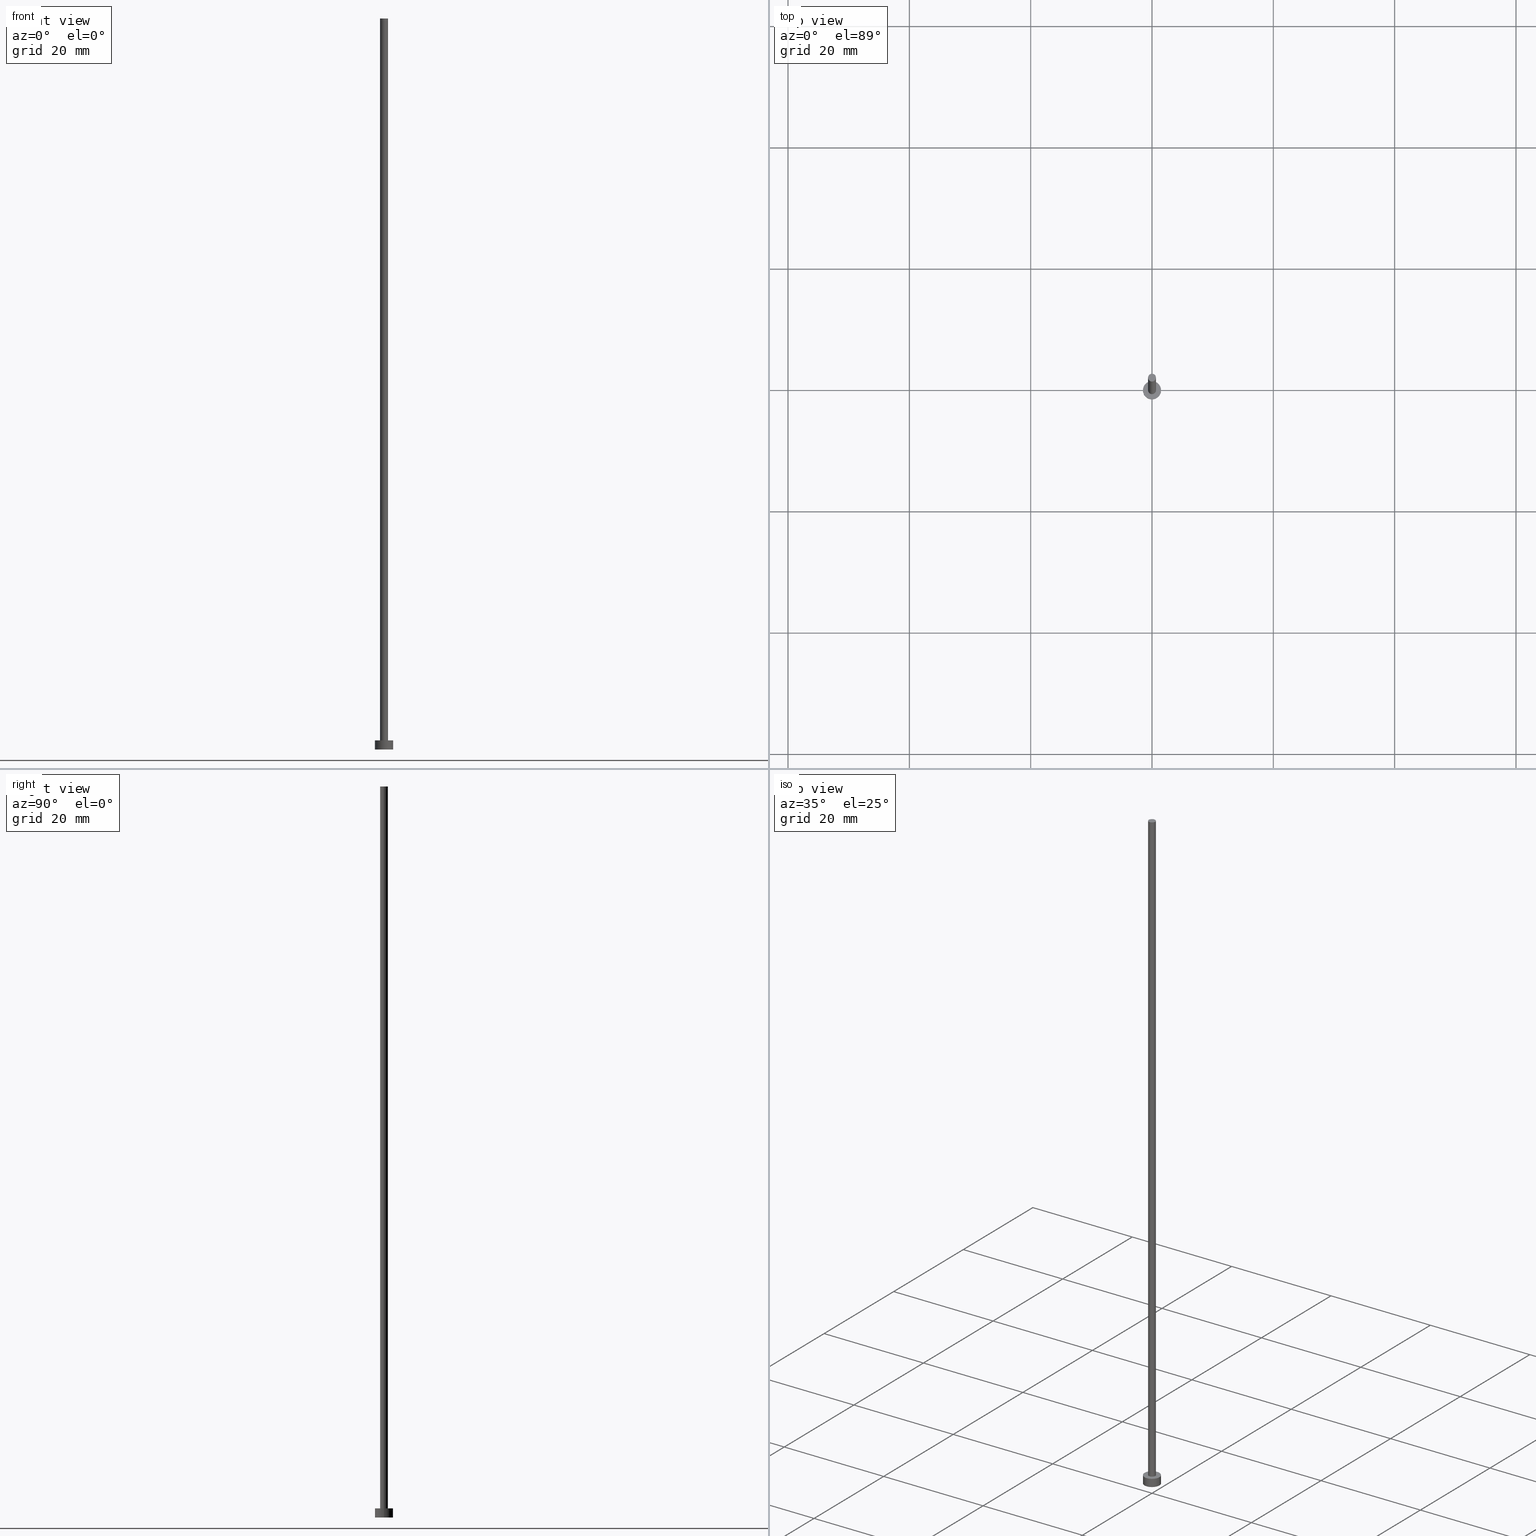
[diagram: canonical four-view strip — front | top / right | iso, engineering-drawing reading convention]
A machine part, canonical four-view strip (front | top / right | iso — engineering-drawing reading convention). The complete STEP part file that produces these views, byte-faithful:
ISO-10303-21;
HEADER;
FILE_DESCRIPTION (( 'STEP AP203' ),
    '1' );
FILE_NAME ('c64f.STEP',
    '2023-03-07T09:47:35',
    ( '' ),
    ( '' ),
    'SwSTEP 2.0',
    'SolidWorks 2019',
    '' );
FILE_SCHEMA (( 'CONFIG_CONTROL_DESIGN' ));
ENDSEC;

DATA;
#1 = DIRECTION ( 'NONE',  ( -1.000000000000000000, 0.000000000000000000, 0.000000000000000000 ) ) ;
#2 = AXIS2_PLACEMENT_3D ( 'NONE', #24, #95, #109 ) ;
#3 = PLANE ( 'NONE',  #79 ) ;
#4 = FACE_OUTER_BOUND ( 'NONE', #85, .T. ) ;
#5 = CC_DESIGN_DATE_AND_TIME_ASSIGNMENT ( #96, #211, ( #132 ) ) ;
#6 = CARTESIAN_POINT ( 'NONE',  ( 1.500000000000000222, 1.836970198721030181E-16, 1.500000000000000000 ) ) ;
#7 = DIRECTION ( 'NONE',  ( 0.000000000000000000, 0.000000000000000000, 1.000000000000000000 ) ) ;
#8 = EDGE_CURVE ( 'NONE', #146, #203, #30, .T. ) ;
#9 = CALENDAR_DATE ( 2023, 7, 3 ) ;
#10 = DIRECTION ( 'NONE',  ( 0.000000000000000000, 0.000000000000000000, 1.000000000000000000 ) ) ;
#11 = CC_DESIGN_PERSON_AND_ORGANIZATION_ASSIGNMENT ( #157, #86, ( #169 ) ) ;
#12 =( NAMED_UNIT ( * ) PLANE_ANGLE_UNIT ( ) SI_UNIT ( $, .RADIAN. ) );
#13 = CIRCLE ( 'NONE', #185, 1.500000000000000222 ) ;
#14 = CC_DESIGN_PERSON_AND_ORGANIZATION_ASSIGNMENT ( #135, #134, ( #132 ) ) ;
#15 = DATE_AND_TIME ( #138, #140 ) ;
#16 = DIRECTION ( 'NONE',  ( 0.000000000000000000, 0.000000000000000000, 1.000000000000000000 ) ) ;
#17 = ORIENTED_EDGE ( 'NONE', *, *, #75, .T. ) ;
#18 = DIRECTION ( 'NONE',  ( -0.000000000000000000, -0.000000000000000000, -1.000000000000000000 ) ) ;
#19 = CARTESIAN_POINT ( 'NONE',  ( 0.000000000000000000, 0.000000000000000000, 120.5000000000000000 ) ) ;
#20 = DIRECTION ( 'NONE',  ( -1.000000000000000000, 0.000000000000000000, 0.000000000000000000 ) ) ;
#21 = DIRECTION ( 'NONE',  ( 1.000000000000000000, 0.000000000000000000, 0.000000000000000000 ) ) ;
#22 = AXIS2_PLACEMENT_3D ( 'NONE', #40, #16, #64 ) ;
#23 = APPROVAL ( #160, 'NEUR�EN�' ) ;
#24 = CARTESIAN_POINT ( 'NONE',  ( 0.000000000000000000, 0.000000000000000000, 120.5000000000000000 ) ) ;
#25 = CC_DESIGN_PERSON_AND_ORGANIZATION_ASSIGNMENT ( #251, #62, ( #248 ) ) ;
#26 = APPLICATION_CONTEXT ( 'configuration controlled 3d designs of mechanical parts and assemblies' ) ;
#27 = DIRECTION ( 'NONE',  ( 1.000000000000000000, 0.000000000000000000, -0.000000000000000000 ) ) ;
#28 = CARTESIAN_POINT ( 'NONE',  ( 0.000000000000000000, 0.000000000000000000, 1.500000000000000000 ) ) ;
#29 = EDGE_CURVE ( 'NONE', #161, #163, #158, .T. ) ;
#30 = CIRCLE ( 'NONE', #22, 1.500000000000000222 ) ;
#31 = COORDINATED_UNIVERSAL_TIME_OFFSET ( 1, 0, .AHEAD. ) ;
#32 = CARTESIAN_POINT ( 'NONE',  ( 0.000000000000000000, 0.000000000000000000, 0.000000000000000000 ) ) ;
#33 = PRODUCT_RELATED_PRODUCT_CATEGORY ( 'detail', '', ( #70 ) ) ;
#34 = AXIS2_PLACEMENT_3D ( 'NONE', #149, #126, #191 ) ;
#35 = APPROVAL_ROLE ( '' ) ;
#36 = DIRECTION ( 'NONE',  ( 0.000000000000000000, 0.000000000000000000, 1.000000000000000000 ) ) ;
#37 = AXIS2_PLACEMENT_3D ( 'NONE', #225, #242, #49 ) ;
#38 = VERTEX_POINT ( 'NONE', #197 ) ;
#39 = CALENDAR_DATE ( 2023, 7, 3 ) ;
#40 = CARTESIAN_POINT ( 'NONE',  ( 0.000000000000000000, 0.000000000000000000, 0.000000000000000000 ) ) ;
#41 = EDGE_CURVE ( 'NONE', #141, #146, #199, .T. ) ;
#42 = ORIENTED_EDGE ( 'NONE', *, *, #181, .F. ) ;
#43 = CLOSED_SHELL ( 'NONE', ( #67, #173, #102, #128, #150, #53, #188 ) ) ;
#44 = ORIENTED_EDGE ( 'NONE', *, *, #195, .F. ) ;
#45 = CARTESIAN_POINT ( 'NONE',  ( 0.000000000000000000, 0.000000000000000000, 120.5000000000000000 ) ) ;
#46 = EDGE_CURVE ( 'NONE', #182, #203, #87, .T. ) ;
#47 = FACE_OUTER_BOUND ( 'NONE', #103, .T. ) ;
#48 = CC_DESIGN_APPROVAL ( #23, ( #248 ) ) ;
#49 = DIRECTION ( 'NONE',  ( 1.000000000000000000, 0.000000000000000000, 0.000000000000000000 ) ) ;
#50 = CARTESIAN_POINT ( 'NONE',  ( 0.000000000000000000, 0.000000000000000000, 0.000000000000000000 ) ) ;
#51 = DIRECTION ( 'NONE',  ( -0.000000000000000000, -0.000000000000000000, -1.000000000000000000 ) ) ;
#52 = APPROVAL_PERSON_ORGANIZATION ( #55, #76, #78 ) ;
#53 = ADVANCED_FACE ( 'NONE', ( #219 ), #202, .T. ) ;
#54 = EDGE_CURVE ( 'NONE', #118, #161, #72, .T. ) ;
#55 = PERSON_AND_ORGANIZATION ( #230, #61 ) ;
#56 = PERSON_AND_ORGANIZATION ( #230, #61 ) ;
#57 = VECTOR ( 'NONE', #144, 1000.000000000000000 ) ;
#58 = COORDINATED_UNIVERSAL_TIME_OFFSET ( 1, 0, .AHEAD. ) ;
#59 = CARTESIAN_POINT ( 'NONE',  ( 0.000000000000000000, 0.000000000000000000, 1.500000000000000000 ) ) ;
#60 = ORIENTED_EDGE ( 'NONE', *, *, #217, .T. ) ;
#61 = ORGANIZATION ( 'NEUR�EN�', 'NEUR�EN�', '' ) ;
#62 = PERSON_AND_ORGANIZATION_ROLE ( 'classification_officer' ) ;
#63 = ORIENTED_EDGE ( 'NONE', *, *, #29, .F. ) ;
#64 = DIRECTION ( 'NONE',  ( 1.000000000000000000, 0.000000000000000000, 0.000000000000000000 ) ) ;
#65 = ORIENTED_EDGE ( 'NONE', *, *, #54, .F. ) ;
#66 = DIRECTION ( 'NONE',  ( 1.000000000000000000, 0.000000000000000000, 0.000000000000000000 ) ) ;
#67 = ADVANCED_FACE ( 'NONE', ( #4 ), #204, .T. ) ;
#68 = DIRECTION ( 'NONE',  ( 0.000000000000000000, 0.000000000000000000, 1.000000000000000000 ) ) ;
#69 = CYLINDRICAL_SURFACE ( 'NONE', #220, 1.500000000000000222 ) ;
#70 = PRODUCT ( 'c64f', 'c64f', '', ( #155 ) ) ;
#71 = AXIS2_PLACEMENT_3D ( 'NONE', #241, #68, #21 ) ;
#72 = LINE ( 'NONE', #190, #99 ) ;
#73 = CARTESIAN_POINT ( 'NONE',  ( 0.000000000000000000, 0.000000000000000000, 1.500000000000000000 ) ) ;
#74 = APPROVAL_PERSON_ORGANIZATION ( #212, #77, #35 ) ;
#75 = EDGE_CURVE ( 'NONE', #203, #146, #94, .T. ) ;
#76 = APPROVAL ( #210, 'NEUR�EN�' ) ;
#77 = APPROVAL ( #247, 'NEUR�EN�' ) ;
#78 = APPROVAL_ROLE ( '' ) ;
#79 = AXIS2_PLACEMENT_3D ( 'NONE', #50, #91, #131 ) ;
#80 = DATE_TIME_ROLE ( 'classification_date' ) ;
#81 = EDGE_LOOP ( 'NONE', ( #63, #44 ) ) ;
#82 = APPROVAL_DATE_TIME ( #15, #23 ) ;
#83 = ADVANCED_BREP_SHAPE_REPRESENTATION ( 'c64f', ( #171, #127 ), #250 ) ;
#84 = CARTESIAN_POINT ( 'NONE',  ( 1.500000000000000222, 1.836970198721030181E-16, 1.500000000000000000 ) ) ;
#85 = EDGE_LOOP ( 'NONE', ( #42, #139, #221, #65 ) ) ;
#86 = PERSON_AND_ORGANIZATION_ROLE ( 'creator' ) ;
#87 = LINE ( 'NONE', #236, #57 ) ;
#88 = EDGE_LOOP ( 'NONE', ( #168, #252, #214, #234 ) ) ;
#89 = CARTESIAN_POINT ( 'NONE',  ( 0.000000000000000000, 0.000000000000000000, 1.500000000000000000 ) ) ;
#90 = CC_DESIGN_APPROVAL ( #76, ( #169 ) ) ;
#91 = DIRECTION ( 'NONE',  ( 0.000000000000000000, 0.000000000000000000, 1.000000000000000000 ) ) ;
#92 = CYLINDRICAL_SURFACE ( 'NONE', #34, 1.500000000000000222 ) ;
#93 = LINE ( 'NONE', #226, #232 ) ;
#94 = CIRCLE ( 'NONE', #200, 1.500000000000000222 ) ;
#95 = DIRECTION ( 'NONE',  ( 0.000000000000000000, 0.000000000000000000, 1.000000000000000000 ) ) ;
#96 = DATE_AND_TIME ( #9, #123 ) ;
#97 = CIRCLE ( 'NONE', #152, 1.500000000000000222 ) ;
#98 =( NAMED_UNIT ( * ) SI_UNIT ( $, .STERADIAN. ) SOLID_ANGLE_UNIT ( ) );
#99 = VECTOR ( 'NONE', #245, 1000.000000000000000 ) ;
#100 = EDGE_LOOP ( 'NONE', ( #101, #253, #235, #17 ) ) ;
#101 = ORIENTED_EDGE ( 'NONE', *, *, #41, .F. ) ;
#102 = ADVANCED_FACE ( 'NONE', ( #170 ), #92, .T. ) ;
#103 = EDGE_LOOP ( 'NONE', ( #183, #216 ) ) ;
#104 = PERSON_AND_ORGANIZATION ( #230, #61 ) ;
#105 = ORIENTED_EDGE ( 'NONE', *, *, #54, .T. ) ;
#106 = DIRECTION ( 'NONE',  ( 1.000000000000000000, 0.000000000000000000, 0.000000000000000000 ) ) ;
#107 = DIRECTION ( 'NONE',  ( -0.000000000000000000, -0.000000000000000000, -1.000000000000000000 ) ) ;
#108 = AXIS2_PLACEMENT_3D ( 'NONE', #73, #7, #27 ) ;
#109 = DIRECTION ( 'NONE',  ( 1.000000000000000000, 0.000000000000000000, -0.000000000000000000 ) ) ;
#110 = CARTESIAN_POINT ( 'NONE',  ( 0.000000000000000000, 0.000000000000000000, 0.000000000000000000 ) ) ;
#111 = DIRECTION ( 'NONE',  ( 0.000000000000000000, 0.000000000000000000, 1.000000000000000000 ) ) ;
#112 = EDGE_CURVE ( 'NONE', #118, #38, #114, .T. ) ;
#113 = CALENDAR_DATE ( 2023, 7, 3 ) ;
#114 = CIRCLE ( 'NONE', #147, 0.6500000000000000222 ) ;
#115 = PERSON_AND_ORGANIZATION_ROLE ( 'design_owner' ) ;
#116 = COORDINATED_UNIVERSAL_TIME_OFFSET ( 1, 0, .AHEAD. ) ;
#117 = AXIS2_PLACEMENT_3D ( 'NONE', #19, #51, #1 ) ;
#118 = VERTEX_POINT ( 'NONE', #187 ) ;
#119 = CC_DESIGN_PERSON_AND_ORGANIZATION_ASSIGNMENT ( #56, #115, ( #70 ) ) ;
#120 = PERSON_AND_ORGANIZATION ( #230, #61 ) ;
#121 = DIRECTION ( 'NONE',  ( 1.000000000000000000, 0.000000000000000000, 0.000000000000000000 ) ) ;
#122 = ORIENTED_EDGE ( 'NONE', *, *, #112, .F. ) ;
#123 = LOCAL_TIME ( 10, 47, 35.00000000000000000, #249 ) ;
#124 = ORIENTED_EDGE ( 'NONE', *, *, #75, .F. ) ;
#125 = CARTESIAN_POINT ( 'NONE',  ( 0.6500000000000000222, 7.960204194457795477E-17, 1.500000000000000000 ) ) ;
#126 = DIRECTION ( 'NONE',  ( -0.000000000000000000, -0.000000000000000000, -1.000000000000000000 ) ) ;
#127 = AXIS2_PLACEMENT_3D ( 'NONE', #32, #10, #246 ) ;
#128 = ADVANCED_FACE ( 'NONE', ( #148, #227 ), #189, .T. ) ;
#129 = CARTESIAN_POINT ( 'NONE',  ( 0.000000000000000000, 0.000000000000000000, 1.500000000000000000 ) ) ;
#130 = CARTESIAN_POINT ( 'NONE',  ( 0.000000000000000000, 0.000000000000000000, 120.5000000000000000 ) ) ;
#131 = DIRECTION ( 'NONE',  ( 1.000000000000000000, 0.000000000000000000, -0.000000000000000000 ) ) ;
#132 = PRODUCT_DEFINITION ( 'NEZN�M�', '', #169, #156 ) ;
#133 = DATE_AND_TIME ( #179, #215 ) ;
#134 = PERSON_AND_ORGANIZATION_ROLE ( 'creator' ) ;
#135 = PERSON_AND_ORGANIZATION ( #230, #61 ) ;
#136 = UNCERTAINTY_MEASURE_WITH_UNIT (LENGTH_MEASURE( 1.000000000000000082E-05 ), #193, 'distance_accuracy_value', 'NONE');
#137 = APPROVAL_PERSON_ORGANIZATION ( #120, #23, #233 ) ;
#138 = CALENDAR_DATE ( 2023, 7, 3 ) ;
#139 = ORIENTED_EDGE ( 'NONE', *, *, #196, .T. ) ;
#140 = LOCAL_TIME ( 10, 47, 35.00000000000000000, #58 ) ;
#141 = VERTEX_POINT ( 'NONE', #6 ) ;
#142 = ORIENTED_EDGE ( 'NONE', *, *, #29, .T. ) ;
#143 = PRODUCT_DEFINITION_SHAPE ( 'NONE', 'NONE',  #132 ) ;
#144 = DIRECTION ( 'NONE',  ( -0.000000000000000000, -0.000000000000000000, -1.000000000000000000 ) ) ;
#145 = VECTOR ( 'NONE', #18, 1000.000000000000000 ) ;
#146 = VERTEX_POINT ( 'NONE', #176 ) ;
#147 = AXIS2_PLACEMENT_3D ( 'NONE', #130, #240, #66 ) ;
#148 = FACE_BOUND ( 'NONE', #81, .T. ) ;
#149 = CARTESIAN_POINT ( 'NONE',  ( 0.000000000000000000, 0.000000000000000000, 1.500000000000000000 ) ) ;
#150 = ADVANCED_FACE ( 'NONE', ( #175 ), #3, .F. ) ;
#151 = DIRECTION ( 'NONE',  ( -1.000000000000000000, 0.000000000000000000, 0.000000000000000000 ) ) ;
#152 = AXIS2_PLACEMENT_3D ( 'NONE', #28, #111, #192 ) ;
#153 = DIRECTION ( 'NONE',  ( 1.000000000000000000, 0.000000000000000000, 0.000000000000000000 ) ) ;
#154 = CARTESIAN_POINT ( 'NONE',  ( -1.500000000000000222, 0.000000000000000000, 1.500000000000000000 ) ) ;
#155 = MECHANICAL_CONTEXT ( 'NONE', #213, 'mechanical' ) ;
#156 = DESIGN_CONTEXT ( 'detailed design', #26, 'design' ) ;
#157 = PERSON_AND_ORGANIZATION ( #230, #61 ) ;
#158 = CIRCLE ( 'NONE', #164, 0.6500000000000000222 ) ;
#159 = APPROVAL_DATE_TIME ( #133, #77 ) ;
#160 = APPROVAL_STATUS ( 'not_yet_approved' ) ;
#161 = VERTEX_POINT ( 'NONE', #224 ) ;
#162 = SHAPE_DEFINITION_REPRESENTATION ( #143, #83 ) ;
#163 = VERTEX_POINT ( 'NONE', #125 ) ;
#164 = AXIS2_PLACEMENT_3D ( 'NONE', #59, #36, #121 ) ;
#165 = PERSON_AND_ORGANIZATION_ROLE ( 'design_supplier' ) ;
#166 = ORIENTED_EDGE ( 'NONE', *, *, #196, .F. ) ;
#167 = EDGE_LOOP ( 'NONE', ( #238, #60 ) ) ;
#168 = ORIENTED_EDGE ( 'NONE', *, *, #217, .F. ) ;
#169 = PRODUCT_DEFINITION_FORMATION_WITH_SPECIFIED_SOURCE ( 'LIBOVOLN�', '', #70, .NOT_KNOWN. ) ;
#170 = FACE_OUTER_BOUND ( 'NONE', #100, .T. ) ;
#171 = MANIFOLD_SOLID_BREP ( 'P�idat vysunut�m3', #43 ) ;
#172 = DIRECTION ( 'NONE',  ( 0.000000000000000000, 0.000000000000000000, 1.000000000000000000 ) ) ;
#173 = ADVANCED_FACE ( 'NONE', ( #174 ), #69, .T. ) ;
#174 = FACE_OUTER_BOUND ( 'NONE', #88, .T. ) ;
#175 = FACE_OUTER_BOUND ( 'NONE', #255, .T. ) ;
#176 = CARTESIAN_POINT ( 'NONE',  ( 1.500000000000000222, 1.836970198721030181E-16, 0.000000000000000000 ) ) ;
#177 = DATE_AND_TIME ( #113, #243 ) ;
#178 = AXIS2_PLACEMENT_3D ( 'NONE', #45, #107, #20 ) ;
#179 = CALENDAR_DATE ( 2023, 7, 3 ) ;
#180 = CIRCLE ( 'NONE', #71, 0.6500000000000000222 ) ;
#181 = EDGE_CURVE ( 'NONE', #38, #118, #180, .T. ) ;
#182 = VERTEX_POINT ( 'NONE', #154 ) ;
#183 = ORIENTED_EDGE ( 'NONE', *, *, #112, .T. ) ;
#184 = ORIENTED_EDGE ( 'NONE', *, *, #8, .F. ) ;
#185 = AXIS2_PLACEMENT_3D ( 'NONE', #129, #207, #153 ) ;
#186 = SECURITY_CLASSIFICATION_LEVEL ( 'unclassified' ) ;
#187 = CARTESIAN_POINT ( 'NONE',  ( -0.6500000000000000222, 0.000000000000000000, 120.5000000000000000 ) ) ;
#188 = ADVANCED_FACE ( 'NONE', ( #47 ), #206, .T. ) ;
#189 = PLANE ( 'NONE',  #108 ) ;
#190 = CARTESIAN_POINT ( 'NONE',  ( -0.6500000000000000222, 0.000000000000000000, 120.5000000000000000 ) ) ;
#191 = DIRECTION ( 'NONE',  ( -1.000000000000000000, 0.000000000000000000, 0.000000000000000000 ) ) ;
#192 = DIRECTION ( 'NONE',  ( 1.000000000000000000, 0.000000000000000000, 0.000000000000000000 ) ) ;
#193 =( LENGTH_UNIT ( ) NAMED_UNIT ( * ) SI_UNIT ( .MILLI., .METRE. ) );
#194 = APPROVAL_DATE_TIME ( #177, #76 ) ;
#195 = EDGE_CURVE ( 'NONE', #163, #161, #239, .T. ) ;
#196 = EDGE_CURVE ( 'NONE', #38, #163, #93, .T. ) ;
#197 = CARTESIAN_POINT ( 'NONE',  ( 0.6500000000000000222, 7.960204194457795477E-17, 120.5000000000000000 ) ) ;
#198 = COORDINATED_UNIVERSAL_TIME_OFFSET ( 1, 0, .AHEAD. ) ;
#199 = LINE ( 'NONE', #84, #145 ) ;
#200 = AXIS2_PLACEMENT_3D ( 'NONE', #110, #172, #106 ) ;
#201 = DATE_AND_TIME ( #39, #229 ) ;
#202 = CYLINDRICAL_SURFACE ( 'NONE', #117, 0.6500000000000000222 ) ;
#203 = VERTEX_POINT ( 'NONE', #208 ) ;
#204 = CYLINDRICAL_SURFACE ( 'NONE', #178, 0.6500000000000000222 ) ;
#205 = CC_DESIGN_SECURITY_CLASSIFICATION ( #248, ( #169 ) ) ;
#206 = PLANE ( 'NONE',  #2 ) ;
#207 = DIRECTION ( 'NONE',  ( 0.000000000000000000, 0.000000000000000000, 1.000000000000000000 ) ) ;
#208 = CARTESIAN_POINT ( 'NONE',  ( -1.500000000000000222, 0.000000000000000000, 0.000000000000000000 ) ) ;
#209 = CC_DESIGN_APPROVAL ( #77, ( #132 ) ) ;
#210 = APPROVAL_STATUS ( 'not_yet_approved' ) ;
#211 = DATE_TIME_ROLE ( 'creation_date' ) ;
#212 = PERSON_AND_ORGANIZATION ( #230, #61 ) ;
#213 = APPLICATION_CONTEXT ( 'configuration controlled 3d designs of mechanical parts and assemblies' ) ;
#214 = ORIENTED_EDGE ( 'NONE', *, *, #8, .T. ) ;
#215 = LOCAL_TIME ( 10, 47, 35.00000000000000000, #116 ) ;
#216 = ORIENTED_EDGE ( 'NONE', *, *, #181, .T. ) ;
#217 = EDGE_CURVE ( 'NONE', #141, #182, #13, .T. ) ;
#218 = EDGE_LOOP ( 'NONE', ( #166, #122, #105, #142 ) ) ;
#219 = FACE_OUTER_BOUND ( 'NONE', #218, .T. ) ;
#220 = AXIS2_PLACEMENT_3D ( 'NONE', #89, #223, #151 ) ;
#221 = ORIENTED_EDGE ( 'NONE', *, *, #195, .T. ) ;
#222 = CC_DESIGN_DATE_AND_TIME_ASSIGNMENT ( #201, #80, ( #248 ) ) ;
#223 = DIRECTION ( 'NONE',  ( -0.000000000000000000, -0.000000000000000000, -1.000000000000000000 ) ) ;
#224 = CARTESIAN_POINT ( 'NONE',  ( -0.6500000000000000222, 0.000000000000000000, 1.500000000000000000 ) ) ;
#225 = CARTESIAN_POINT ( 'NONE',  ( 0.000000000000000000, 0.000000000000000000, 1.500000000000000000 ) ) ;
#226 = CARTESIAN_POINT ( 'NONE',  ( 0.6500000000000000222, 7.960204194457795477E-17, 120.5000000000000000 ) ) ;
#227 = FACE_OUTER_BOUND ( 'NONE', #167, .T. ) ;
#228 = APPLICATION_PROTOCOL_DEFINITION ( 'international standard', 'config_control_design', 1994, #213 ) ;
#229 = LOCAL_TIME ( 10, 47, 35.00000000000000000, #198 ) ;
#230 = PERSON ( 'NEUR�EN�', 'NEUR�EN�', 'NEUR�EN�', ('NEUR�EN�'), ('NEUR�EN�'), ('NEUR�EN�') ) ;
#231 = APPLICATION_PROTOCOL_DEFINITION ( 'international standard', 'config_control_design', 1994, #26 ) ;
#232 = VECTOR ( 'NONE', #244, 1000.000000000000000 ) ;
#233 = APPROVAL_ROLE ( '' ) ;
#234 = ORIENTED_EDGE ( 'NONE', *, *, #46, .F. ) ;
#235 = ORIENTED_EDGE ( 'NONE', *, *, #46, .T. ) ;
#236 = CARTESIAN_POINT ( 'NONE',  ( -1.500000000000000222, 0.000000000000000000, 1.500000000000000000 ) ) ;
#237 = EDGE_CURVE ( 'NONE', #182, #141, #97, .T. ) ;
#238 = ORIENTED_EDGE ( 'NONE', *, *, #237, .T. ) ;
#239 = CIRCLE ( 'NONE', #37, 0.6500000000000000222 ) ;
#240 = DIRECTION ( 'NONE',  ( 0.000000000000000000, 0.000000000000000000, 1.000000000000000000 ) ) ;
#241 = CARTESIAN_POINT ( 'NONE',  ( 0.000000000000000000, 0.000000000000000000, 120.5000000000000000 ) ) ;
#242 = DIRECTION ( 'NONE',  ( 0.000000000000000000, 0.000000000000000000, 1.000000000000000000 ) ) ;
#243 = LOCAL_TIME ( 10, 47, 35.00000000000000000, #31 ) ;
#244 = DIRECTION ( 'NONE',  ( -0.000000000000000000, -0.000000000000000000, -1.000000000000000000 ) ) ;
#245 = DIRECTION ( 'NONE',  ( -0.000000000000000000, -0.000000000000000000, -1.000000000000000000 ) ) ;
#246 = DIRECTION ( 'NONE',  ( 1.000000000000000000, 0.000000000000000000, 0.000000000000000000 ) ) ;
#247 = APPROVAL_STATUS ( 'not_yet_approved' ) ;
#248 = SECURITY_CLASSIFICATION ( '', '', #186 ) ;
#249 = COORDINATED_UNIVERSAL_TIME_OFFSET ( 1, 0, .AHEAD. ) ;
#250 =( GEOMETRIC_REPRESENTATION_CONTEXT ( 3 ) GLOBAL_UNCERTAINTY_ASSIGNED_CONTEXT ( ( #136 ) ) GLOBAL_UNIT_ASSIGNED_CONTEXT ( ( #193, #12, #98 ) ) REPRESENTATION_CONTEXT ( 'NONE', 'WORKASPACE' ) );
#251 = PERSON_AND_ORGANIZATION ( #230, #61 ) ;
#252 = ORIENTED_EDGE ( 'NONE', *, *, #41, .T. ) ;
#253 = ORIENTED_EDGE ( 'NONE', *, *, #237, .F. ) ;
#254 = CC_DESIGN_PERSON_AND_ORGANIZATION_ASSIGNMENT ( #104, #165, ( #169 ) ) ;
#255 = EDGE_LOOP ( 'NONE', ( #124, #184 ) ) ;
ENDSEC;
END-ISO-10303-21;
